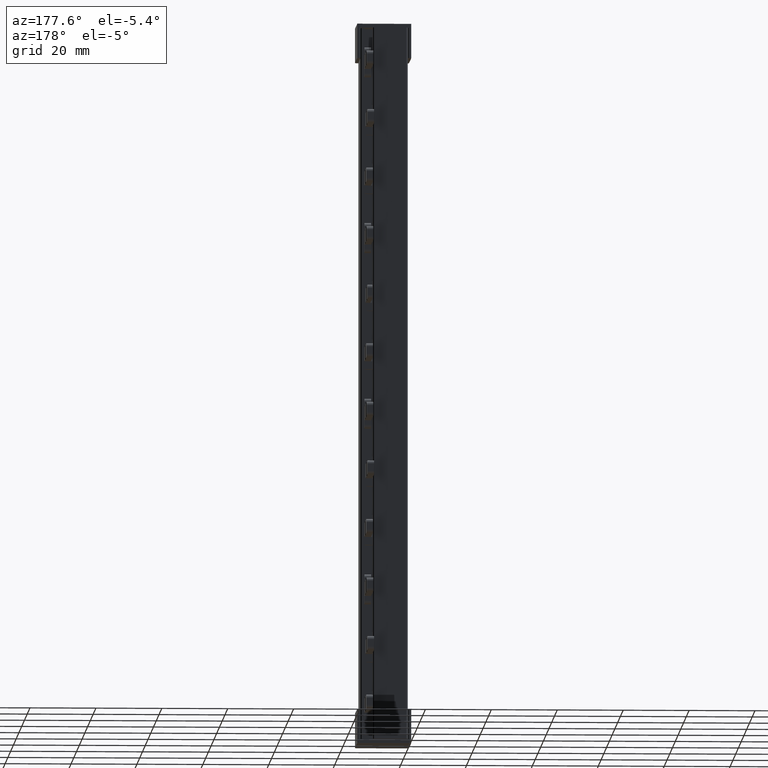
[diagram: clean part render]
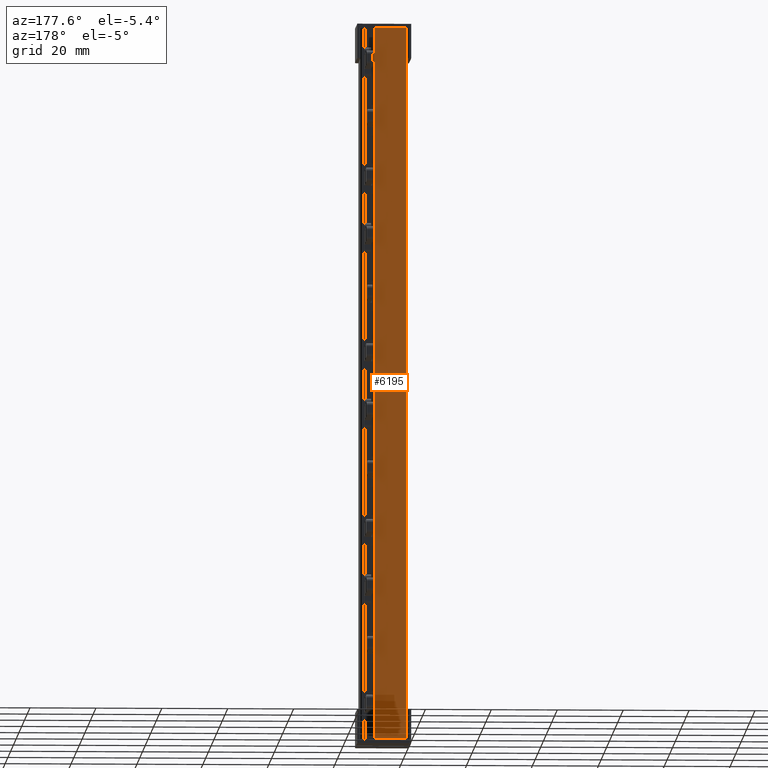
[diagram: same view with one face highlighted and labeled with its STEP entity id]
A machine part, auxiliary view. The second image highlights one B-rep face of the part: STEP entity #6195.
In plain terms, the highlighted planar face has unit normal (-0, 1, 0).
Its self-contained STEP definition (entity closure, byte-faithful):
#1404 = EDGE_CURVE ( 'NONE', #21499, #21442, #7967, .T. ) ;
#1446 = EDGE_CURVE ( 'NONE', #21455, #21499, #9192, .T. ) ;
#1453 = EDGE_CURVE ( 'NONE', #21438, #21455, #9204, .T. ) ;
#1498 = EDGE_CURVE ( 'NONE', #21438, #21442, #9350, .T. ) ;
#2643 = CARTESIAN_POINT ( 'NONE',  ( -0.1240000000000006500, 17.70000000000002100, 1.200000000000000000 ) ) ;
#2648 = CARTESIAN_POINT ( 'NONE',  ( -0.1240000000000006500, 17.70000000000002100, 217.7999999999999800 ) ) ;
#2680 = CARTESIAN_POINT ( 'NONE',  ( 9.543233284733544200, 17.70000000000003800, 217.7999999999999800 ) ) ;
#2695 = CARTESIAN_POINT ( 'NONE',  ( 9.543233284733544200, 17.70000000000003800, 1.200000000000000000 ) ) ;
#4891 = AXIS2_PLACEMENT_3D ( 'NONE', #22873, #22850, #22880 ) ;
#6195 = ADVANCED_FACE ( 'NONE', ( #22854 ), #22807, .T. ) ;
#7954 = DIRECTION ( 'NONE',  ( -1.000000000000000000, -2.677240383555454500E-015, 0.0000000000000000000 ) ) ;
#7960 = CARTESIAN_POINT ( 'NONE',  ( 5.825548534933010300, 17.70000000000002800, 1.200000000000000000 ) ) ;
#7967 = LINE ( 'NONE', #7960, #19143 ) ;
#9192 = LINE ( 'NONE', #9214, #19333 ) ;
#9199 = DIRECTION ( 'NONE',  ( -0.0000000000000000000, -0.0000000000000000000, -1.000000000000000000 ) ) ;
#9204 = LINE ( 'NONE', #9206, #19341 ) ;
#9206 = CARTESIAN_POINT ( 'NONE',  ( 5.825548534933010300, 17.70000000000002800, 217.7999999999999800 ) ) ;
#9208 = DIRECTION ( 'NONE',  ( 1.000000000000000000, 2.677240383555454500E-015, -0.0000000000000000000 ) ) ;
#9214 = CARTESIAN_POINT ( 'NONE',  ( 9.543233284733545900, 17.70000000000003800, 217.7999999999999800 ) ) ;
#9330 = DIRECTION ( 'NONE',  ( -0.0000000000000000000, -0.0000000000000000000, -1.000000000000000000 ) ) ;
#9350 = LINE ( 'NONE', #9368, #19402 ) ;
#9368 = CARTESIAN_POINT ( 'NONE',  ( -0.1240000000000000000, 17.70000000000002800, 217.7999999999999800 ) ) ;
#16916 = EDGE_LOOP ( 'NONE', ( #17224, #17283, #17325, #17317 ) ) ;
#17224 = ORIENTED_EDGE ( 'NONE', *, *, #1446, .T. ) ;
#17283 = ORIENTED_EDGE ( 'NONE', *, *, #1404, .T. ) ;
#17317 = ORIENTED_EDGE ( 'NONE', *, *, #1453, .T. ) ;
#17325 = ORIENTED_EDGE ( 'NONE', *, *, #1498, .F. ) ;
#19143 = VECTOR ( 'NONE', #7954, 1000.000000000000000 ) ;
#19333 = VECTOR ( 'NONE', #9199, 1000.000000000000000 ) ;
#19341 = VECTOR ( 'NONE', #9208, 1000.000000000000000 ) ;
#19402 = VECTOR ( 'NONE', #9330, 1000.000000000000000 ) ;
#21438 = VERTEX_POINT ( 'NONE', #2648 ) ;
#21442 = VERTEX_POINT ( 'NONE', #2643 ) ;
#21455 = VERTEX_POINT ( 'NONE', #2680 ) ;
#21499 = VERTEX_POINT ( 'NONE', #2695 ) ;
#22807 = PLANE ( 'NONE',  #4891 ) ;
#22850 = DIRECTION ( 'NONE',  ( -2.677240383555454500E-015, 1.000000000000000000, 0.0000000000000000000 ) ) ;
#22854 = FACE_OUTER_BOUND ( 'NONE', #16916, .T. ) ;
#22873 = CARTESIAN_POINT ( 'NONE',  ( 5.825548534933010300, 17.70000000000002800, 217.7999999999999800 ) ) ;
#22880 = DIRECTION ( 'NONE',  ( -1.000000000000000000, -2.677240383555454500E-015, 0.0000000000000000000 ) ) ;